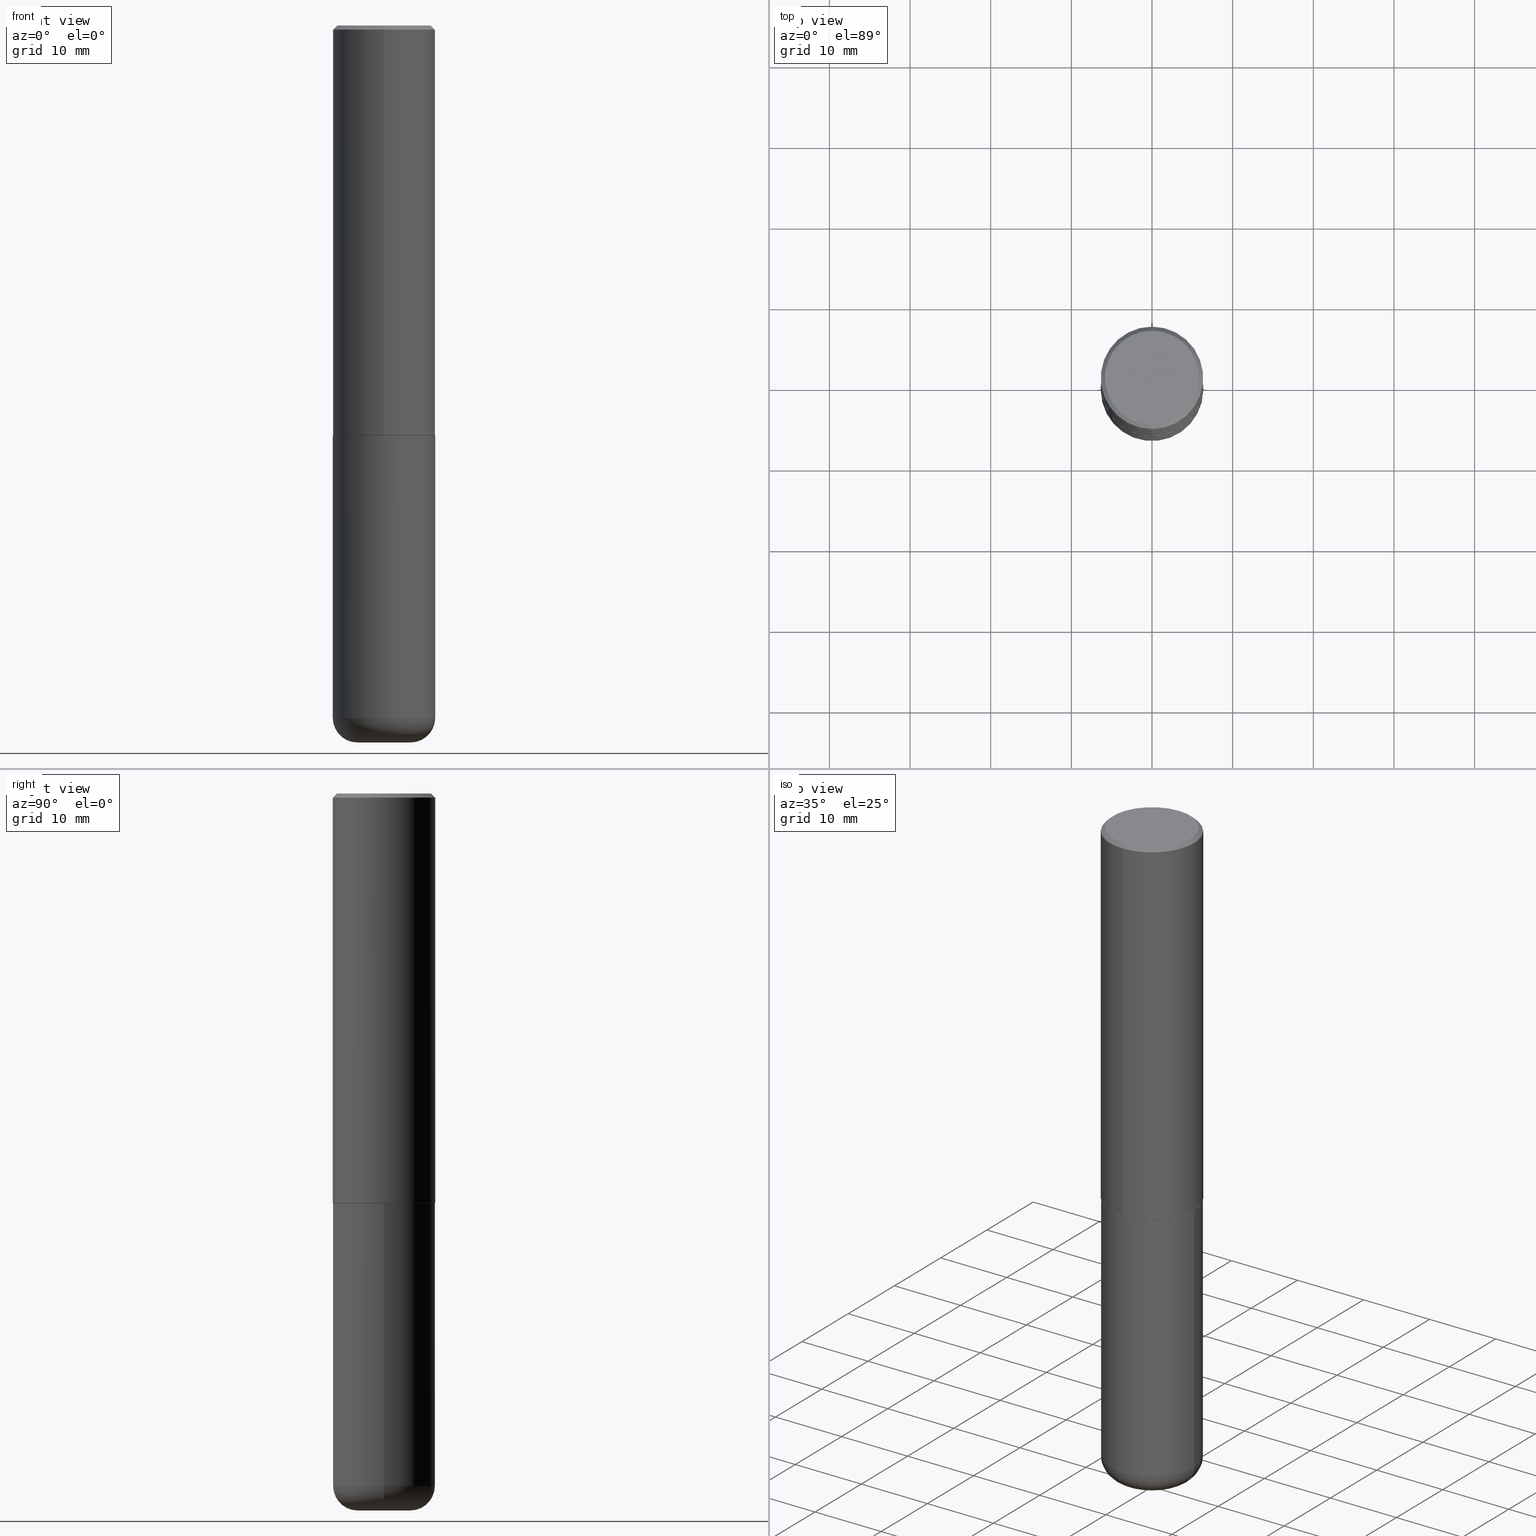
[diagram: canonical four-view strip — front | top / right | iso, engineering-drawing reading convention]
A machine part, canonical four-view strip (front | top / right | iso — engineering-drawing reading convention). The complete STEP part file that produces these views, byte-faithful:
ISO-10303-21;
HEADER;
FILE_DESCRIPTION (( 'STEP AP203' ),
    '1' );
FILE_NAME ('37561.STEP',
    '2024-03-02T04:28:21',
    ( '' ),
    ( '' ),
    'SwSTEP 2.0',
    'SolidWorks 2023',
    '' );
FILE_SCHEMA (( 'CONFIG_CONTROL_DESIGN' ));
ENDSEC;

DATA;
#1 = ORIENTED_EDGE ( 'NONE', *, *, #376, .F. ) ;
#2 = CIRCLE ( 'NONE', #287, 0.2489999999999999991 ) ;
#3 = AXIS2_PLACEMENT_3D ( 'NONE', #116, #237, #155 ) ;
#4 = ORIENTED_EDGE ( 'NONE', *, *, #376, .T. ) ;
#5 = ADVANCED_BREP_SHAPE_REPRESENTATION ( '37561', ( #277, #6, #353 ), #372 ) ;
#6 = MANIFOLD_SOLID_BREP ( 'Body-Move/Copy2[2]', #352 ) ;
#7 = PERSON_AND_ORGANIZATION ( #407, #23 ) ;
#8 = CYLINDRICAL_SURFACE ( 'NONE', #91, 0.2500000000000000000 ) ;
#9 = EDGE_CURVE ( 'NONE', #220, #186, #102, .T. ) ;
#10 = CARTESIAN_POINT ( 'NONE',  ( -1.715124499442882299E-15, -0.2500000000000000555, -0.01999999999999918510 ) ) ;
#11 = AXIS2_PLACEMENT_3D ( 'NONE', #410, #119, #368 ) ;
#12 = APPLICATION_PROTOCOL_DEFINITION ( 'international standard', 'config_control_design', 1994, #329 ) ;
#13 = DIRECTION ( 'NONE',  ( 1.000000000000000000, -6.982962677686265133E-15, 4.883557194083112340E-29 ) ) ;
#14 = CARTESIAN_POINT ( 'NONE',  ( 1.776356839400251254E-15, 0.2500000000000001110, -8.727742518895823935E-16 ) ) ;
#15 = DIRECTION ( 'NONE',  ( 7.105427357601001859E-15, 1.000000000000000000, -3.491481338843145583E-15 ) ) ;
#16 = APPROVAL ( #339, 'UNSPECIFIED' ) ;
#17 = VECTOR ( 'NONE', #394, 39.37007874015748143 ) ;
#18 = CALENDAR_DATE ( 2024, 1, 3 ) ;
#19 = ADVANCED_FACE ( 'NONE', ( #57 ), #330, .T. ) ;
#20 = EDGE_LOOP ( 'NONE', ( #356, #416, #413, #81 ) ) ;
#21 = DIMENSIONAL_EXPONENTS ( 1.000000000000000000, 0.000000000000000000, 0.000000000000000000, 0.000000000000000000, 0.000000000000000000, 0.000000000000000000, 0.000000000000000000 ) ;
#22 = LINE ( 'NONE', #26, #173 ) ;
#23 = ORGANIZATION ( 'UNSPECIFIED', 'UNSPECIFIED', '' ) ;
#24 = DIRECTION ( 'NONE',  ( 6.982962677686265922E-15, 1.000000000000000000, -3.491097007558327602E-15 ) ) ;
#25 = ORIENTED_EDGE ( 'NONE', *, *, #161, .F. ) ;
#26 = CARTESIAN_POINT ( 'NONE',  ( -1.715124499442882299E-15, -0.2500000000000000555, -0.01999999999999918510 ) ) ;
#27 = ORIENTED_EDGE ( 'NONE', *, *, #409, .T. ) ;
#28 = ORIENTED_EDGE ( 'NONE', *, *, #221, .T. ) ;
#29 = FACE_OUTER_BOUND ( 'NONE', #73, .T. ) ;
#30 = EDGE_LOOP ( 'NONE', ( #309, #347 ) ) ;
#31 = SECURITY_CLASSIFICATION ( '', '', #106 ) ;
#32 = EDGE_LOOP ( 'NONE', ( #271, #87 ) ) ;
#33 = DIRECTION ( 'NONE',  ( 2.438088387897960049E-29, -3.491481338843145188E-15, -1.000000000000000000 ) ) ;
#34 = ORIENTED_EDGE ( 'NONE', *, *, #256, .F. ) ;
#35 = CARTESIAN_POINT ( 'NONE',  ( 0.1300000000000000044, -1.270899207338904770E-14, -3.379999999999999893 ) ) ;
#36 = PLANE ( 'NONE',  #129 ) ;
#37 = CLOSED_SHELL ( 'NONE', ( #171, #19, #318, #69, #179, #189 ) ) ;
#38 = CIRCLE ( 'NONE', #332, 0.2299999999999999822 ) ;
#39 = CALENDAR_DATE ( 2024, 1, 3 ) ;
#40 = DIRECTION ( 'NONE',  ( -1.000000000000000000, 6.982962677686265922E-15, -4.876176775795935793E-29 ) ) ;
#41 = EDGE_CURVE ( 'NONE', #186, #153, #391, .T. ) ;
#42 = CARTESIAN_POINT ( 'NONE',  ( 1.745740669421566875E-15, 0.2499999999999999167, -0.02000000000000092676 ) ) ;
#43 = DIRECTION ( 'NONE',  ( -6.982962677686266711E-15, -1.000000000000000000, 3.491097007558327996E-15 ) ) ;
#44 = FACE_OUTER_BOUND ( 'NONE', #20, .T. ) ;
#45 = CIRCLE ( 'NONE', #405, 0.2500000000000000000 ) ;
#46 = PERSON_AND_ORGANIZATION ( #407, #23 ) ;
#47 = DIRECTION ( 'NONE',  ( -2.445737183286911680E-29, 3.491097007558327602E-15, 1.000000000000000000 ) ) ;
#48 = CARTESIAN_POINT ( 'NONE',  ( 0.2500000000000000000, -8.728703347107857054E-15, -1.999999999999999778 ) ) ;
#49 = CARTESIAN_POINT ( 'NONE',  ( 4.891474366573822799E-29, -6.982194015116654415E-15, -1.999999999999999778 ) ) ;
#50 = LOCAL_TIME ( 23, 28, 21.00000000000000000, #293 ) ;
#51 = APPROVAL_DATE_TIME ( #375, #16 ) ;
#52 = ADVANCED_FACE ( 'NONE', ( #29 ), #89, .F. ) ;
#53 = DIRECTION ( 'NONE',  ( 6.982962677686265922E-15, 1.000000000000000000, -3.483106191921935554E-15 ) ) ;
#54 = DIRECTION ( 'NONE',  ( -2.445468806185136597E-29, 3.491481338843145583E-15, 1.000000000000000000 ) ) ;
#55 = ORIENTED_EDGE ( 'NONE', *, *, #211, .T. ) ;
#56 = CIRCLE ( 'NONE', #164, 0.2500000000000000000 ) ;
#57 = FACE_OUTER_BOUND ( 'NONE', #191, .T. ) ;
#58 = DIRECTION ( 'NONE',  ( -2.445468806185136597E-29, 3.491481338843145583E-15, 1.000000000000000000 ) ) ;
#59 = EDGE_LOOP ( 'NONE', ( #61, #4, #151, #123 ) ) ;
#60 = LINE ( 'NONE', #95, #323 ) ;
#61 = ORIENTED_EDGE ( 'NONE', *, *, #294, .T. ) ;
#62 = CYLINDRICAL_SURFACE ( 'NONE', #298, 0.2500000000000001110 ) ;
#63 = LOCAL_TIME ( 23, 28, 21.00000000000000000, #360 ) ;
#64 = FACE_OUTER_BOUND ( 'NONE', #154, .T. ) ;
#65 = ORIENTED_EDGE ( 'NONE', *, *, #270, .F. ) ;
#66 = MECHANICAL_CONTEXT ( 'NONE', #329, 'mechanical' ) ;
#67 = CARTESIAN_POINT ( 'NONE',  ( 1.776356839400276103E-15, 0.2499999999999933109, -1.999000000000000554 ) ) ;
#68 = CIRCLE ( 'NONE', #415, 0.2299999999999999822 ) ;
#69 = ADVANCED_FACE ( 'NONE', ( #132 ), #345, .T. ) ;
#70 = APPROVAL_PERSON_ORGANIZATION ( #85, #16, #338 ) ;
#71 =( LENGTH_UNIT ( ) NAMED_UNIT ( * ) SI_UNIT ( $, .METRE. ) );
#72 = CARTESIAN_POINT ( 'NONE',  ( 1.769251412042698169E-15, 0.2489999999999930325, -2.000000000000000444 ) ) ;
#73 = EDGE_LOOP ( 'NONE', ( #214, #55 ) ) ;
#74 = DATE_AND_TIME ( #39, #63 ) ;
#75 = CARTESIAN_POINT ( 'NONE',  ( 8.559140821647976968E-29, -1.222018468595100934E-14, -3.500000000000000000 ) ) ;
#76 = APPROVAL_DATE_TIME ( #395, #337 ) ;
#77 = DIRECTION ( 'NONE',  ( -2.445468806185136597E-29, 3.491481338843145583E-15, 1.000000000000000000 ) ) ;
#78 = CC_DESIGN_SECURITY_CLASSIFICATION ( #31, ( #288 ) ) ;
#79 = PERSON_AND_ORGANIZATION_ROLE ( 'design_supplier' ) ;
#80 = CARTESIAN_POINT ( 'NONE',  ( 0.000000000000000000, 0.000000000000000000, 0.000000000000000000 ) ) ;
#81 = ORIENTED_EDGE ( 'NONE', *, *, #122, .F. ) ;
#82 = FACE_OUTER_BOUND ( 'NONE', #213, .T. ) ;
#83 = ADVANCED_FACE ( 'NONE', ( #355 ), #36, .F. ) ;
#84 = AXIS2_PLACEMENT_3D ( 'NONE', #359, #176, #236 ) ;
#85 = PERSON_AND_ORGANIZATION ( #407, #23 ) ;
#86 = APPROVAL ( #134, 'UNSPECIFIED' ) ;
#87 = ORIENTED_EDGE ( 'NONE', *, *, #362, .F. ) ;
#88 = CARTESIAN_POINT ( 'NONE',  ( -0.1300000000000000044, -1.066066460767623105E-14, -3.500000000000000000 ) ) ;
#89 = PLANE ( 'NONE',  #344 ) ;
#90 = ORIENTED_EDGE ( 'NONE', *, *, #96, .F. ) ;
#91 = AXIS2_PLACEMENT_3D ( 'NONE', #361, #401, #197 ) ;
#92 = AXIS2_PLACEMENT_3D ( 'NONE', #317, #33, #284 ) ;
#93 = CC_DESIGN_PERSON_AND_ORGANIZATION_ASSIGNMENT ( #46, #299, ( #31 ) ) ;
#94 = ORIENTED_EDGE ( 'NONE', *, *, #211, .F. ) ;
#95 = CARTESIAN_POINT ( 'NONE',  ( -0.2500000000000000000, 1.776356839400250465E-15, -1.229733772563726445E-29 ) ) ;
#96 = EDGE_CURVE ( 'NONE', #186, #159, #142, .T. ) ;
#97 = CARTESIAN_POINT ( 'NONE',  ( 4.891474366573836672E-31, -6.982194015116674235E-17, -0.02000000000000005593 ) ) ;
#98 = AXIS2_PLACEMENT_3D ( 'NONE', #35, #279, #414 ) ;
#99 = DIRECTION ( 'NONE',  ( 6.982962677686265922E-15, 1.000000000000000000, -3.483106191921935554E-15 ) ) ;
#100 = DIRECTION ( 'NONE',  ( 1.000000000000000000, -6.982962677686266711E-15, 4.876176775795935793E-29 ) ) ;
#101 = DATE_TIME_ROLE ( 'creation_date' ) ;
#102 = LINE ( 'NONE', #275, #112 ) ;
#103 =( NAMED_UNIT ( * ) PLANE_ANGLE_UNIT ( ) SI_UNIT ( $, .RADIAN. ) );
#104 = CARTESIAN_POINT ( 'NONE',  ( 8.559140821647976968E-29, -1.222018468595100934E-14, -3.500000000000000000 ) ) ;
#105 = CONICAL_SURFACE ( 'NONE', #247, 0.2500000000000000000, 0.7853981633974481680 ) ;
#106 = SECURITY_CLASSIFICATION_LEVEL ( 'unclassified' ) ;
#107 = CARTESIAN_POINT ( 'NONE',  ( 4.891474366573822799E-29, -6.982194015116654415E-15, -1.999999999999999778 ) ) ;
#108 = LINE ( 'NONE', #42, #198 ) ;
#109 = DIRECTION ( 'NONE',  ( 2.438088387897960049E-29, -3.491481338843145188E-15, -1.000000000000000000 ) ) ;
#110 = DIRECTION ( 'NONE',  ( 0.000000000000000000, 0.000000000000000000, 1.000000000000000000 ) ) ;
#111 = FACE_OUTER_BOUND ( 'NONE', #59, .T. ) ;
#112 = VECTOR ( 'NONE', #408, 39.37007874015748143 ) ;
#113 = CC_DESIGN_APPROVAL ( #337, ( #288 ) ) ;
#114 = DIRECTION ( 'NONE',  ( -2.445737183286911680E-29, 3.491097007558327602E-15, 1.000000000000000000 ) ) ;
#115 = DATE_TIME_ROLE ( 'classification_date' ) ;
#116 = CARTESIAN_POINT ( 'NONE',  ( 8.265684564905761787E-29, -1.180120692528983271E-14, -3.379999999999999893 ) ) ;
#117 = CARTESIAN_POINT ( 'NONE',  ( 8.265684564905761787E-29, -1.180120692528983271E-14, -3.379999999999999893 ) ) ;
#118 = ORIENTED_EDGE ( 'NONE', *, *, #301, .T. ) ;
#119 = DIRECTION ( 'NONE',  ( -2.445468806185136597E-29, 3.491481338843145583E-15, 1.000000000000000000 ) ) ;
#120 = ORIENTED_EDGE ( 'NONE', *, *, #169, .T. ) ;
#121 = ORIENTED_EDGE ( 'NONE', *, *, #41, .T. ) ;
#122 = EDGE_CURVE ( 'NONE', #153, #186, #272, .T. ) ;
#123 = ORIENTED_EDGE ( 'NONE', *, *, #370, .F. ) ;
#124 = PRODUCT_DEFINITION_SHAPE ( 'NONE', 'NONE',  #310 ) ;
#125 = ORIENTED_EDGE ( 'NONE', *, *, #41, .F. ) ;
#126 = AXIS2_PLACEMENT_3D ( 'NONE', #117, #58, #341 ) ;
#127 = DIRECTION ( 'NONE',  ( -6.982962677686266711E-15, -1.000000000000000000, 3.491097007558327996E-15 ) ) ;
#128 = EDGE_CURVE ( 'NONE', #379, #159, #178, .T. ) ;
#129 = AXIS2_PLACEMENT_3D ( 'NONE', #107, #133, #231 ) ;
#130 = VERTEX_POINT ( 'NONE', #48 ) ;
#131 = PERSON_AND_ORGANIZATION ( #407, #23 ) ;
#132 = FACE_OUTER_BOUND ( 'NONE', #249, .T. ) ;
#133 = DIRECTION ( 'NONE',  ( -2.445737183286911400E-29, 3.491097007558327602E-15, 1.000000000000000000 ) ) ;
#134 = APPROVAL_STATUS ( 'not_yet_approved' ) ;
#135 = FACE_OUTER_BOUND ( 'NONE', #30, .T. ) ;
#136 = AXIS2_PLACEMENT_3D ( 'NONE', #253, #385, #100 ) ;
#137 = LOCAL_TIME ( 23, 28, 21.00000000000000000, #399 ) ;
#138 = APPROVAL_STATUS ( 'not_yet_approved' ) ;
#139 = PLANE ( 'NONE',  #210 ) ;
#140 = COORDINATED_UNIVERSAL_TIME_OFFSET ( 5, 0, .BEHIND. ) ;
#141 = DIRECTION ( 'NONE',  ( -2.445737183286911680E-29, 3.491097007558327602E-15, 1.000000000000000000 ) ) ;
#142 = LINE ( 'NONE', #206, #404 ) ;
#143 = LOCAL_TIME ( 23, 28, 21.00000000000000000, #258 ) ;
#144 = ADVANCED_FACE ( 'NONE', ( #295 ), #167, .T. ) ;
#145 = DIRECTION ( 'NONE',  ( 1.000000000000000000, -6.982962677686266711E-15, 0.000000000000000000 ) ) ;
#146 = CARTESIAN_POINT ( 'NONE',  ( -0.2499999999999999722, -1.002485008588958224E-14, -3.379999999999999893 ) ) ;
#147 = ORIENTED_EDGE ( 'NONE', *, *, #122, .T. ) ;
#148 = AXIS2_PLACEMENT_3D ( 'NONE', #80, #302, #43 ) ;
#149 = CONICAL_SURFACE ( 'NONE', #392, 0.2500000000000000000, 0.7853981633974481680 ) ;
#150 = DIRECTION ( 'NONE',  ( -4.851104656540962697E-15, -0.7071067811865497932, -0.7071067811865451302 ) ) ;
#151 = ORIENTED_EDGE ( 'NONE', *, *, #232, .F. ) ;
#152 = CC_DESIGN_PERSON_AND_ORGANIZATION_ASSIGNMENT ( #7, #291, ( #310 ) ) ;
#153 = VERTEX_POINT ( 'NONE', #67 ) ;
#154 = EDGE_LOOP ( 'NONE', ( #320, #228 ) ) ;
#155 = DIRECTION ( 'NONE',  ( 1.000000000000000000, -6.982962677686270655E-15, 0.000000000000000000 ) ) ;
#156 = VERTEX_POINT ( 'NONE', #292 ) ;
#157 = EDGE_CURVE ( 'NONE', #184, #153, #396, .T. ) ;
#158 = CC_DESIGN_APPROVAL ( #16, ( #31 ) ) ;
#159 = VERTEX_POINT ( 'NONE', #10 ) ;
#160 = DIRECTION ( 'NONE',  ( -2.445468806185136877E-29, 3.491481338843145188E-15, 1.000000000000000000 ) ) ;
#161 = EDGE_CURVE ( 'NONE', #278, #244, #384, .T. ) ;
#162 = CARTESIAN_POINT ( 'NONE',  ( 0.1300000000000000044, -1.312796983405022433E-14, -3.500000000000000000 ) ) ;
#163 = EDGE_LOOP ( 'NONE', ( #94, #285, #190, #374 ) ) ;
#164 = AXIS2_PLACEMENT_3D ( 'NONE', #209, #180, #269 ) ;
#165 = CC_DESIGN_DATE_AND_TIME_ASSIGNMENT ( #233, #101, ( #310 ) ) ;
#166 = CALENDAR_DATE ( 2024, 1, 3 ) ;
#167 = CYLINDRICAL_SURFACE ( 'NONE', #148, 0.2500000000000001110 ) ;
#168 = APPROVAL_ROLE ( '' ) ;
#169 = EDGE_CURVE ( 'NONE', #220, #184, #2, .T. ) ;
#170 = DIRECTION ( 'NONE',  ( -6.982962677686265922E-15, -1.000000000000000000, 3.278217592397112312E-15 ) ) ;
#171 = ADVANCED_FACE ( 'NONE', ( #111 ), #8, .T. ) ;
#172 = CARTESIAN_POINT ( 'NONE',  ( -0.1300000000000000044, -1.087750136880170322E-14, -3.379999999999999893 ) ) ;
#173 = VECTOR ( 'NONE', #150, 39.37007874015748854 ) ;
#174 = LOCAL_TIME ( 23, 28, 21.00000000000000000, #140 ) ;
#175 = CARTESIAN_POINT ( 'NONE',  ( -1.738757706743831162E-15, -0.2490000000000069658, -1.999999999999998890 ) ) ;
#176 = DIRECTION ( 'NONE',  ( -2.445737183286911680E-29, 3.491097007558327602E-15, 1.000000000000000000 ) ) ;
#177 = DIRECTION ( 'NONE',  ( -6.982962677686265133E-15, -1.000000000000000000, 3.291383124896702687E-15 ) ) ;
#178 = CIRCLE ( 'NONE', #84, 0.2500000000000000000 ) ;
#179 = ADVANCED_FACE ( 'NONE', ( #325 ), #265, .T. ) ;
#180 = DIRECTION ( 'NONE',  ( -2.445468806185136597E-29, 3.491481338843145583E-15, 1.000000000000000000 ) ) ;
#181 = ORIENTED_EDGE ( 'NONE', *, *, #402, .F. ) ;
#182 = CARTESIAN_POINT ( 'NONE',  ( 8.559140821647976968E-29, -1.222018468595100934E-14, -3.500000000000000000 ) ) ;
#183 = CARTESIAN_POINT ( 'NONE',  ( 1.606081415867841067E-15, 0.2299999999999999822, -8.158020473064706174E-16 ) ) ;
#184 = VERTEX_POINT ( 'NONE', #390 ) ;
#185 = CIRCLE ( 'NONE', #3, 0.2500000000000000000 ) ;
#186 = VERTEX_POINT ( 'NONE', #200 ) ;
#187 = CARTESIAN_POINT ( 'NONE',  ( 0.2500000000000000000, -1.745740669421566678E-15, 1.219044193948983948E-29 ) ) ;
#188 = DIRECTION ( 'NONE',  ( -2.445737183286911680E-29, 3.491097007558327602E-15, 1.000000000000000000 ) ) ;
#189 = ADVANCED_FACE ( 'NONE', ( #135 ), #139, .T. ) ;
#190 = ORIENTED_EDGE ( 'NONE', *, *, #402, .T. ) ;
#191 = EDGE_LOOP ( 'NONE', ( #245, #350, #195, #412 ) ) ;
#192 = EDGE_CURVE ( 'NONE', #278, #305, #303, .T. ) ;
#193 = CIRCLE ( 'NONE', #366, 0.1300000000000000044 ) ;
#194 = DIRECTION ( 'NONE',  ( 2.445737183286911680E-29, -3.491097007558327602E-15, -1.000000000000000000 ) ) ;
#195 = ORIENTED_EDGE ( 'NONE', *, *, #294, .F. ) ;
#196 = CALENDAR_DATE ( 2024, 1, 3 ) ;
#197 = DIRECTION ( 'NONE',  ( 1.000000000000000000, -6.982962677686266711E-15, 4.876176775795935793E-29 ) ) ;
#198 = VECTOR ( 'NONE', #254, 39.37007874015748854 ) ;
#199 =( NAMED_UNIT ( * ) SI_UNIT ( $, .STERADIAN. ) SOLID_ANGLE_UNIT ( ) );
#200 = CARTESIAN_POINT ( 'NONE',  ( -1.745740669421519543E-15, -0.2500000000000072164, -1.998999999999998778 ) ) ;
#201 = APPLICATION_PROTOCOL_DEFINITION ( 'international standard', 'config_control_design', 1994, #342 ) ;
#202 = DIRECTION ( 'NONE',  ( -2.445737183286911680E-29, 3.491097007558327602E-15, 1.000000000000000000 ) ) ;
#203 = DIRECTION ( 'NONE',  ( 1.000000000000000000, 0.000000000000000000, 0.000000000000000000 ) ) ;
#204 = CARTESIAN_POINT ( 'NONE',  ( 4.891474366573822799E-29, -6.982194015116654415E-15, -1.999999999999999778 ) ) ;
#205 = CALENDAR_DATE ( 2024, 1, 3 ) ;
#206 = CARTESIAN_POINT ( 'NONE',  ( -1.745740669421567467E-15, -0.2500000000000001110, 8.727742518895823935E-16 ) ) ;
#207 = VERTEX_POINT ( 'NONE', #367 ) ;
#208 = DATE_AND_TIME ( #205, #174 ) ;
#209 = CARTESIAN_POINT ( 'NONE',  ( 8.265684564905761787E-29, -1.180120692528983271E-14, -3.379999999999999893 ) ) ;
#210 = AXIS2_PLACEMENT_3D ( 'NONE', #75, #109, #40 ) ;
#211 = EDGE_CURVE ( 'NONE', #156, #388, #68, .T. ) ;
#212 = PRODUCT_RELATED_PRODUCT_CATEGORY ( 'detail', '', ( #286 ) ) ;
#213 = EDGE_LOOP ( 'NONE', ( #120, #255, #125, #312 ) ) ;
#214 = ORIENTED_EDGE ( 'NONE', *, *, #381, .T. ) ;
#215 = ORIENTED_EDGE ( 'NONE', *, *, #290, .T. ) ;
#216 = DIRECTION ( 'NONE',  ( -2.445737183286911680E-29, 3.491097007558327602E-15, 1.000000000000000000 ) ) ;
#217 = ADVANCED_FACE ( 'NONE', ( #44 ), #315, .T. ) ;
#218 = ORIENTED_EDGE ( 'NONE', *, *, #370, .T. ) ;
#219 = CARTESIAN_POINT ( 'NONE',  ( 6.285415214839433991E-46, -8.971934677910720830E-32, -2.569947113611056727E-17 ) ) ;
#220 = VERTEX_POINT ( 'NONE', #175 ) ;
#221 = EDGE_CURVE ( 'NONE', #153, #379, #300, .T. ) ;
#222 = CIRCLE ( 'NONE', #316, 0.2489999999999999991 ) ;
#223 = DIRECTION ( 'NONE',  ( -2.445737183286911680E-29, 3.491097007558327602E-15, 1.000000000000000000 ) ) ;
#224 = FACE_OUTER_BOUND ( 'NONE', #311, .T. ) ;
#225 = ADVANCED_FACE ( 'NONE', ( #398 ), #149, .T. ) ;
#226 = CARTESIAN_POINT ( 'NONE',  ( 4.889028629390535480E-29, -6.978702918109095527E-15, -1.998999999999999666 ) ) ;
#227 = APPROVAL_DATE_TIME ( #74, #86 ) ;
#228 = ORIENTED_EDGE ( 'NONE', *, *, #270, .T. ) ;
#229 = DIRECTION ( 'NONE',  ( 1.000000000000000000, -6.982962677686273810E-15, 0.000000000000000000 ) ) ;
#230 = CIRCLE ( 'NONE', #336, 0.2500000000000000000 ) ;
#231 = DIRECTION ( 'NONE',  ( -6.982962677686265922E-15, -1.000000000000000000, 3.491097007558327602E-15 ) ) ;
#232 = EDGE_CURVE ( 'NONE', #130, #207, #45, .T. ) ;
#233 = DATE_AND_TIME ( #196, #143 ) ;
#234 = CARTESIAN_POINT ( 'NONE',  ( 8.265684564905761787E-29, -1.180120692528983271E-14, -3.379999999999999893 ) ) ;
#235 = CC_DESIGN_PERSON_AND_ORGANIZATION_ASSIGNMENT ( #363, #79, ( #288 ) ) ;
#236 = DIRECTION ( 'NONE',  ( -6.982962677686265922E-15, -1.000000000000000000, 3.483106191921935554E-15 ) ) ;
#237 = DIRECTION ( 'NONE',  ( -2.445468806185136597E-29, 3.491481338843145583E-15, 1.000000000000000000 ) ) ;
#238 = AXIS2_PLACEMENT_3D ( 'NONE', #334, #114, #170 ) ;
#239 = EDGE_CURVE ( 'NONE', #305, #278, #193, .T. ) ;
#240 = CC_DESIGN_APPROVAL ( #86, ( #310 ) ) ;
#241 = ORIENTED_EDGE ( 'NONE', *, *, #192, .T. ) ;
#242 = ORIENTED_EDGE ( 'NONE', *, *, #128, .T. ) ;
#243 = DIRECTION ( 'NONE',  ( -2.445737183286911680E-29, 3.491097007558327602E-15, 1.000000000000000000 ) ) ;
#244 = VERTEX_POINT ( 'NONE', #146 ) ;
#245 = ORIENTED_EDGE ( 'NONE', *, *, #239, .T. ) ;
#246 = AXIS2_PLACEMENT_3D ( 'NONE', #104, #364, #229 ) ;
#247 = AXIS2_PLACEMENT_3D ( 'NONE', #417, #194, #99 ) ;
#248 = CARTESIAN_POINT ( 'NONE',  ( 0.000000000000000000, 0.000000000000000000, 0.000000000000000000 ) ) ;
#249 = EDGE_LOOP ( 'NONE', ( #1, #215, #218, #65 ) ) ;
#250 = DIRECTION ( 'NONE',  ( -6.982962677686265922E-15, -1.000000000000000000, 3.491097007558327207E-15 ) ) ;
#251 = AXIS2_PLACEMENT_3D ( 'NONE', #172, #15, #297 ) ;
#252 = APPROVAL_PERSON_ORGANIZATION ( #393, #337, #331 ) ;
#253 = CARTESIAN_POINT ( 'NONE',  ( 0.000000000000000000, 0.000000000000000000, 0.000000000000000000 ) ) ;
#254 = DIRECTION ( 'NONE',  ( 4.937700262164546464E-15, 0.7071067811865447972, -0.7071067811865500152 ) ) ;
#255 = ORIENTED_EDGE ( 'NONE', *, *, #157, .T. ) ;
#256 = EDGE_CURVE ( 'NONE', #156, #159, #22, .T. ) ;
#257 = DIRECTION ( 'NONE',  ( -6.982962677686265133E-15, -1.000000000000000000, 3.291383124896702687E-15 ) ) ;
#258 = COORDINATED_UNIVERSAL_TIME_OFFSET ( 5, 0, .BEHIND. ) ;
#259 = VECTOR ( 'NONE', #141, 39.37007874015748143 ) ;
#260 = DIRECTION ( 'NONE',  ( -2.445737183286911680E-29, 3.491097007558327602E-15, 1.000000000000000000 ) ) ;
#261 = CC_DESIGN_PERSON_AND_ORGANIZATION_ASSIGNMENT ( #365, #389, ( #288 ) ) ;
#262 = LENGTH_MEASURE_WITH_UNIT ( LENGTH_MEASURE( 0.02539999999999999897 ), #71 );
#263 = DIRECTION ( 'NONE',  ( -2.445737183286911680E-29, 3.491097007558327602E-15, 1.000000000000000000 ) ) ;
#264 = CARTESIAN_POINT ( 'NONE',  ( 4.891474366573822799E-29, -6.982194015116654415E-15, -1.999999999999999778 ) ) ;
#265 = TOROIDAL_SURFACE ( 'NONE', #280, 0.1300000000000000044, 0.1199999999999999123 ) ;
#266 = APPROVAL_PERSON_ORGANIZATION ( #131, #86, #168 ) ;
#267 = DIRECTION ( 'NONE',  ( -2.445468806185136597E-29, 3.491481338843145583E-15, 1.000000000000000000 ) ) ;
#268 = EDGE_LOOP ( 'NONE', ( #34, #378, #27, #242 ) ) ;
#269 = DIRECTION ( 'NONE',  ( 1.000000000000000000, -6.982962677686270655E-15, 0.000000000000000000 ) ) ;
#270 = EDGE_CURVE ( 'NONE', #207, #130, #307, .T. ) ;
#271 = ORIENTED_EDGE ( 'NONE', *, *, #169, .F. ) ;
#272 = CIRCLE ( 'NONE', #238, 0.2500000000000002776 ) ;
#273 = ADVANCED_FACE ( 'NONE', ( #82 ), #357, .T. ) ;
#274 = AXIS2_PLACEMENT_3D ( 'NONE', #49, #243, #177 ) ;
#275 = CARTESIAN_POINT ( 'NONE',  ( -1.738757706743831162E-15, -0.2490000000000069658, -1.999999999999998890 ) ) ;
#276 = EDGE_LOOP ( 'NONE', ( #25, #241, #118, #319 ) ) ;
#277 = MANIFOLD_SOLID_BREP ( 'Body-Move/Copy2[1]', #37 ) ;
#278 = VERTEX_POINT ( 'NONE', #88 ) ;
#279 = DIRECTION ( 'NONE',  ( -6.982962677686266711E-15, -1.000000000000000000, 3.491481338843145583E-15 ) ) ;
#280 = AXIS2_PLACEMENT_3D ( 'NONE', #234, #77, #13 ) ;
#281 = PLANE ( 'NONE',  #92 ) ;
#282 = DIRECTION ( 'NONE',  ( -2.445737183286911680E-29, 3.491097007558327602E-15, 1.000000000000000000 ) ) ;
#283 = CC_DESIGN_DATE_AND_TIME_ASSIGNMENT ( #208, #115, ( #31 ) ) ;
#284 = DIRECTION ( 'NONE',  ( -1.000000000000000000, 6.982962677686265922E-15, -4.876176775795935793E-29 ) ) ;
#285 = ORIENTED_EDGE ( 'NONE', *, *, #256, .T. ) ;
#286 = PRODUCT ( '37561', '37561', '', ( #66 ) ) ;
#287 = AXIS2_PLACEMENT_3D ( 'NONE', #264, #260, #257 ) ;
#288 = PRODUCT_DEFINITION_FORMATION_WITH_SPECIFIED_SOURCE ( 'ANY', '', #286, .NOT_KNOWN. ) ;
#289 = EDGE_LOOP ( 'NONE', ( #121, #28, #181, #90 ) ) ;
#290 = EDGE_CURVE ( 'NONE', #244, #418, #56, .T. ) ;
#291 = PERSON_AND_ORGANIZATION_ROLE ( 'creator' ) ;
#292 = CARTESIAN_POINT ( 'NONE',  ( -1.646519519465166968E-15, -0.2299999999999999822, 7.772528406023046093E-16 ) ) ;
#293 = COORDINATED_UNIVERSAL_TIME_OFFSET ( 5, 0, .BEHIND. ) ;
#294 = EDGE_CURVE ( 'NONE', #418, #244, #185, .T. ) ;
#295 = FACE_OUTER_BOUND ( 'NONE', #289, .T. ) ;
#296 = AXIS2_PLACEMENT_3D ( 'NONE', #226, #188, #377 ) ;
#297 = DIRECTION ( 'NONE',  ( -1.000000000000000000, 7.105427357600995548E-15, 0.000000000000000000 ) ) ;
#298 = AXIS2_PLACEMENT_3D ( 'NONE', #248, #348, #127 ) ;
#299 = PERSON_AND_ORGANIZATION_ROLE ( 'classification_officer' ) ;
#300 = LINE ( 'NONE', #14, #259 ) ;
#301 = EDGE_CURVE ( 'NONE', #305, #418, #400, .T. ) ;
#302 = DIRECTION ( 'NONE',  ( -2.445737183286911680E-29, 3.491097007558327602E-15, 1.000000000000000000 ) ) ;
#303 = CIRCLE ( 'NONE', #246, 0.1300000000000000044 ) ;
#304 = CARTESIAN_POINT ( 'NONE',  ( 4.891474366573836672E-31, -6.982194015116674235E-17, -0.02000000000000005593 ) ) ;
#305 = VERTEX_POINT ( 'NONE', #162 ) ;
#306 = DIRECTION ( 'NONE',  ( 1.000000000000000000, -6.982962677686273810E-15, 0.000000000000000000 ) ) ;
#307 = CIRCLE ( 'NONE', #11, 0.2500000000000000000 ) ;
#308 = DIRECTION ( 'NONE',  ( 2.445737183286911400E-29, -3.491097007558327602E-15, -1.000000000000000000 ) ) ;
#309 = ORIENTED_EDGE ( 'NONE', *, *, #239, .F. ) ;
#310 = PRODUCT_DEFINITION ( 'UNKNOWN', '', #288, #369 ) ;
#311 = EDGE_LOOP ( 'NONE', ( #411, #147, #322, #313 ) ) ;
#312 = ORIENTED_EDGE ( 'NONE', *, *, #9, .F. ) ;
#313 = ORIENTED_EDGE ( 'NONE', *, *, #128, .F. ) ;
#314 = DIRECTION ( 'NONE',  ( -2.445468806185136877E-29, 3.491481338843145188E-15, 1.000000000000000000 ) ) ;
#315 = CONICAL_SURFACE ( 'NONE', #371, 0.2489999999999999991, 0.7853981633975507526 ) ;
#316 = AXIS2_PLACEMENT_3D ( 'NONE', #321, #216, #346 ) ;
#317 = CARTESIAN_POINT ( 'NONE',  ( 4.890937612370272633E-29, -6.982962677686290376E-15, -1.999999999999999778 ) ) ;
#318 = ADVANCED_FACE ( 'NONE', ( #64 ), #281, .F. ) ;
#319 = ORIENTED_EDGE ( 'NONE', *, *, #290, .F. ) ;
#320 = ORIENTED_EDGE ( 'NONE', *, *, #232, .T. ) ;
#321 = CARTESIAN_POINT ( 'NONE',  ( 4.891474366573822799E-29, -6.982194015116654415E-15, -1.999999999999999778 ) ) ;
#322 = ORIENTED_EDGE ( 'NONE', *, *, #96, .T. ) ;
#323 = VECTOR ( 'NONE', #314, 39.37007874015748143 ) ;
#324 = PERSON_AND_ORGANIZATION_ROLE ( 'design_owner' ) ;
#325 = FACE_OUTER_BOUND ( 'NONE', #276, .T. ) ;
#326 = PERSON_AND_ORGANIZATION ( #407, #23 ) ;
#327 = CARTESIAN_POINT ( 'NONE',  ( 6.285415214839433991E-46, -8.971934677910720830E-32, -2.569947113611056727E-17 ) ) ;
#328 = DIRECTION ( 'NONE',  ( -6.982962677686265922E-15, -1.000000000000000000, 3.491097007558327207E-15 ) ) ;
#329 = APPLICATION_CONTEXT ( 'configuration controlled 3d designs of mechanical parts and assemblies' ) ;
#330 = TOROIDAL_SURFACE ( 'NONE', #126, 0.1300000000000000044, 0.1199999999999999123 ) ;
#331 = APPROVAL_ROLE ( '' ) ;
#332 = AXIS2_PLACEMENT_3D ( 'NONE', #219, #282, #250 ) ;
#333 = DIRECTION ( 'NONE',  ( -6.982962677686265133E-15, -1.000000000000000000, 3.291383124896702687E-15 ) ) ;
#334 = CARTESIAN_POINT ( 'NONE',  ( 4.889028629390535480E-29, -6.978702918109095527E-15, -1.998999999999999666 ) ) ;
#335 = ADVANCED_FACE ( 'NONE', ( #380 ), #105, .T. ) ;
#336 = AXIS2_PLACEMENT_3D ( 'NONE', #97, #223, #354 ) ;
#337 = APPROVAL ( #138, 'UNSPECIFIED' ) ;
#338 = APPROVAL_ROLE ( '' ) ;
#339 = APPROVAL_STATUS ( 'not_yet_approved' ) ;
#340 = CARTESIAN_POINT ( 'NONE',  ( 4.890937612370272633E-29, -6.982962677686290376E-15, -1.999999999999999778 ) ) ;
#341 = DIRECTION ( 'NONE',  ( 1.000000000000000000, -6.982962677686265133E-15, 4.883557194083112340E-29 ) ) ;
#342 = APPLICATION_CONTEXT ( 'configuration controlled 3d designs of mechanical parts and assemblies' ) ;
#343 = DIRECTION ( 'NONE',  ( 2.445737183286911680E-29, -3.491097007558327602E-15, -1.000000000000000000 ) ) ;
#344 = AXIS2_PLACEMENT_3D ( 'NONE', #183, #308, #24 ) ;
#345 = CYLINDRICAL_SURFACE ( 'NONE', #136, 0.2500000000000000000 ) ;
#346 = DIRECTION ( 'NONE',  ( -6.982962677686265133E-15, -1.000000000000000000, 3.291383124896702687E-15 ) ) ;
#347 = ORIENTED_EDGE ( 'NONE', *, *, #192, .F. ) ;
#348 = DIRECTION ( 'NONE',  ( -2.445737183286911680E-29, 3.491097007558327602E-15, 1.000000000000000000 ) ) ;
#349 = ADVANCED_FACE ( 'NONE', ( #224 ), #62, .T. ) ;
#350 = ORIENTED_EDGE ( 'NONE', *, *, #161, .T. ) ;
#351 = LINE ( 'NONE', #187, #406 ) ;
#352 = CLOSED_SHELL ( 'NONE', ( #273, #144, #335, #225, #349, #217, #83, #52 ) ) ;
#353 = AXIS2_PLACEMENT_3D ( 'NONE', #397, #110, #203 ) ;
#354 = DIRECTION ( 'NONE',  ( -6.982962677686265922E-15, -1.000000000000000000, 3.483106191921935554E-15 ) ) ;
#355 = FACE_OUTER_BOUND ( 'NONE', #32, .T. ) ;
#356 = ORIENTED_EDGE ( 'NONE', *, *, #157, .F. ) ;
#357 = CONICAL_SURFACE ( 'NONE', #274, 0.2489999999999999991, 0.7853981633975507526 ) ;
#358 =( CONVERSION_BASED_UNIT ( 'INCH', #262 ) LENGTH_UNIT ( ) NAMED_UNIT ( #21 ) );
#359 = CARTESIAN_POINT ( 'NONE',  ( 4.891474366573836672E-31, -6.982194015116674235E-17, -0.02000000000000005593 ) ) ;
#360 = COORDINATED_UNIVERSAL_TIME_OFFSET ( 5, 0, .BEHIND. ) ;
#361 = CARTESIAN_POINT ( 'NONE',  ( 0.000000000000000000, 0.000000000000000000, 0.000000000000000000 ) ) ;
#362 = EDGE_CURVE ( 'NONE', #184, #220, #222, .T. ) ;
#363 = PERSON_AND_ORGANIZATION ( #407, #23 ) ;
#364 = DIRECTION ( 'NONE',  ( -2.445468806185136597E-29, 3.491481338843145583E-15, 1.000000000000000000 ) ) ;
#365 = PERSON_AND_ORGANIZATION ( #407, #23 ) ;
#366 = AXIS2_PLACEMENT_3D ( 'NONE', #182, #267, #306 ) ;
#367 = CARTESIAN_POINT ( 'NONE',  ( -0.2500000000000000000, -7.615727962087811078E-15, -1.999999999999999778 ) ) ;
#368 = DIRECTION ( 'NONE',  ( 1.000000000000000000, -6.982962677686266711E-15, 0.000000000000000000 ) ) ;
#369 = DESIGN_CONTEXT ( 'detailed design', #342, 'design' ) ;
#370 = EDGE_CURVE ( 'NONE', #418, #130, #351, .T. ) ;
#371 = AXIS2_PLACEMENT_3D ( 'NONE', #204, #47, #333 ) ;
#372 =( GEOMETRIC_REPRESENTATION_CONTEXT ( 3 ) GLOBAL_UNCERTAINTY_ASSIGNED_CONTEXT ( ( #373 ) ) GLOBAL_UNIT_ASSIGNED_CONTEXT ( ( #358, #103, #199 ) ) REPRESENTATION_CONTEXT ( 'NONE', 'WORKASPACE' ) );
#373 = UNCERTAINTY_MEASURE_WITH_UNIT (LENGTH_MEASURE( 1.000000000000000082E-05 ), #358, 'distance_accuracy_value', 'NONE');
#374 = ORIENTED_EDGE ( 'NONE', *, *, #409, .F. ) ;
#375 = DATE_AND_TIME ( #18, #137 ) ;
#376 = EDGE_CURVE ( 'NONE', #244, #207, #60, .T. ) ;
#377 = DIRECTION ( 'NONE',  ( -6.982962677686265922E-15, -1.000000000000000000, 3.278217592397112312E-15 ) ) ;
#378 = ORIENTED_EDGE ( 'NONE', *, *, #381, .F. ) ;
#379 = VERTEX_POINT ( 'NONE', #382 ) ;
#380 = FACE_OUTER_BOUND ( 'NONE', #163, .T. ) ;
#381 = EDGE_CURVE ( 'NONE', #388, #156, #38, .T. ) ;
#382 = CARTESIAN_POINT ( 'NONE',  ( 1.745740669421566875E-15, 0.2499999999999999167, -0.02000000000000092676 ) ) ;
#383 = CARTESIAN_POINT ( 'NONE',  ( 1.675911042644703774E-15, 0.2299999999999999822, -8.286517828745257562E-16 ) ) ;
#384 = CIRCLE ( 'NONE', #251, 0.1199999999999999262 ) ;
#385 = DIRECTION ( 'NONE',  ( -2.445468806185136597E-29, 3.491481338843145583E-15, 1.000000000000000000 ) ) ;
#386 = CARTESIAN_POINT ( 'NONE',  ( 0.2499999999999999722, -1.354694759471140096E-14, -3.379999999999999893 ) ) ;
#387 = CC_DESIGN_PERSON_AND_ORGANIZATION_ASSIGNMENT ( #326, #324, ( #286 ) ) ;
#388 = VERTEX_POINT ( 'NONE', #383 ) ;
#389 = PERSON_AND_ORGANIZATION_ROLE ( 'creator' ) ;
#390 = CARTESIAN_POINT ( 'NONE',  ( 1.772804125721499659E-15, 0.2489999999999930325, -2.000000000000000444 ) ) ;
#391 = CIRCLE ( 'NONE', #296, 0.2500000000000002776 ) ;
#392 = AXIS2_PLACEMENT_3D ( 'NONE', #304, #343, #53 ) ;
#393 = PERSON_AND_ORGANIZATION ( #407, #23 ) ;
#394 = DIRECTION ( 'NONE',  ( 5.024295867788576727E-15, 0.7071067811866224018, 0.7071067811864726327 ) ) ;
#395 = DATE_AND_TIME ( #166, #50 ) ;
#396 = LINE ( 'NONE', #72, #17 ) ;
#397 = CARTESIAN_POINT ( 'NONE',  ( 0.000000000000000000, 0.000000000000000000, 0.000000000000000000 ) ) ;
#398 = FACE_OUTER_BOUND ( 'NONE', #268, .T. ) ;
#399 = COORDINATED_UNIVERSAL_TIME_OFFSET ( 5, 0, .BEHIND. ) ;
#400 = CIRCLE ( 'NONE', #98, 0.1199999999999999262 ) ;
#401 = DIRECTION ( 'NONE',  ( -2.445468806185136597E-29, 3.491481338843145583E-15, 1.000000000000000000 ) ) ;
#402 = EDGE_CURVE ( 'NONE', #159, #379, #230, .T. ) ;
#403 = SHAPE_DEFINITION_REPRESENTATION ( #124, #5 ) ;
#404 = VECTOR ( 'NONE', #263, 39.37007874015748143 ) ;
#405 = AXIS2_PLACEMENT_3D ( 'NONE', #340, #54, #145 ) ;
#406 = VECTOR ( 'NONE', #160, 39.37007874015748143 ) ;
#407 = PERSON ( 'UNSPECIFIED', 'UNSPECIFIED', 'UNSPECIFIED', ('UNSPECIFIED'), ('UNSPECIFIED'), ('UNSPECIFIED') ) ;
#408 = DIRECTION ( 'NONE',  ( -4.937700262165053702E-15, -0.7071067811866175168, 0.7071067811864775177 ) ) ;
#409 = EDGE_CURVE ( 'NONE', #388, #379, #108, .T. ) ;
#410 = CARTESIAN_POINT ( 'NONE',  ( 4.890937612370272633E-29, -6.982962677686290376E-15, -1.999999999999999778 ) ) ;
#411 = ORIENTED_EDGE ( 'NONE', *, *, #221, .F. ) ;
#412 = ORIENTED_EDGE ( 'NONE', *, *, #301, .F. ) ;
#413 = ORIENTED_EDGE ( 'NONE', *, *, #9, .T. ) ;
#414 = DIRECTION ( 'NONE',  ( 1.000000000000000000, -6.982962677686272233E-15, 0.000000000000000000 ) ) ;
#415 = AXIS2_PLACEMENT_3D ( 'NONE', #327, #202, #328 ) ;
#416 = ORIENTED_EDGE ( 'NONE', *, *, #362, .T. ) ;
#417 = CARTESIAN_POINT ( 'NONE',  ( 4.891474366573836672E-31, -6.982194015116674235E-17, -0.02000000000000005593 ) ) ;
#418 = VERTEX_POINT ( 'NONE', #386 ) ;
ENDSEC;
END-ISO-10303-21;
